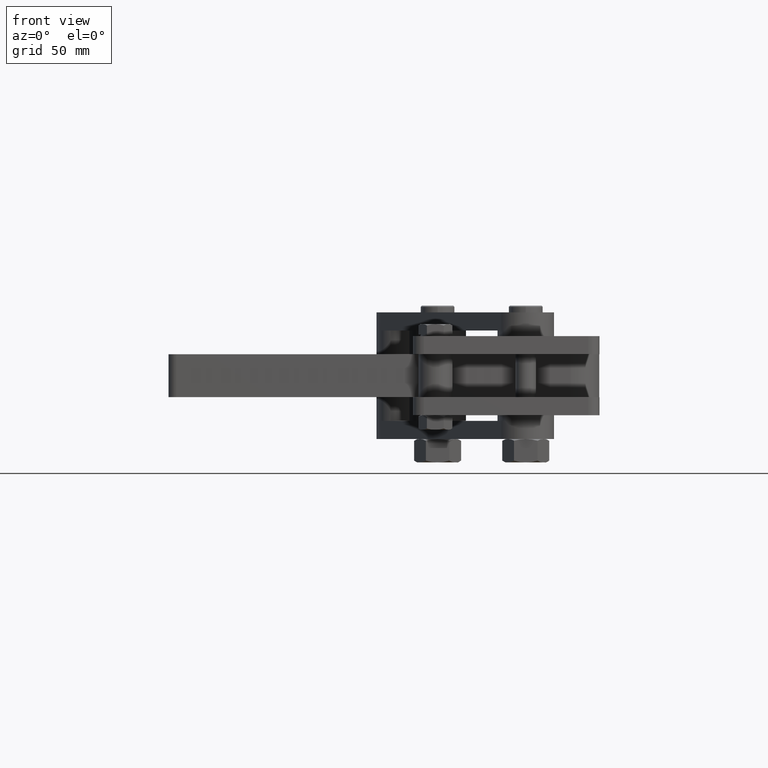
[diagram: clean part render]
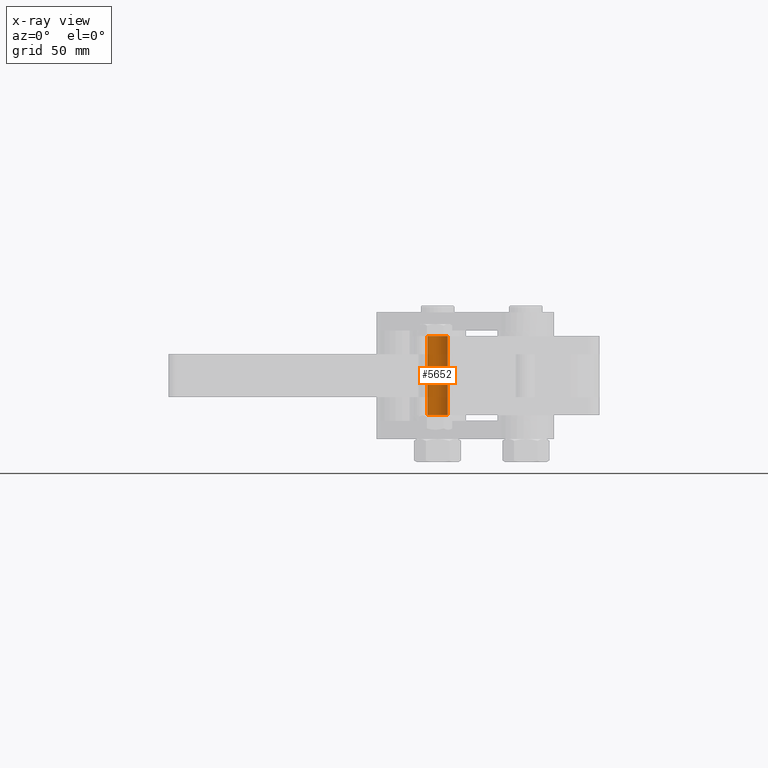
[diagram: x-ray — body ghosted, one internal face saturated and labeled with its STEP entity id]
A machine part, front view, then the same camera in x-ray: the body is ghosted and one INTERNAL B-rep face — a face not visible from any outside direction — is saturated and labeled: STEP entity #5652.
In plain terms, the highlighted cylindrical surface (edge-blend (fillet) strip) has radius 4.5 mm, axis along (0, 0, 1).
Its self-contained STEP definition (entity closure, byte-faithful):
#15 = CARTESIAN_POINT ( 'NONE',  ( 1.499681511515049200, 108.4497976147729900, -43.88570993473476300 ) ) ;
#338 = LINE ( 'NONE', #15, #6299 ) ;
#535 = AXIS2_PLACEMENT_3D ( 'NONE', #5182, #1751, #5768 ) ;
#540 = EDGE_CURVE ( 'NONE', #6668, #5205, #5481, .T. ) ;
#784 = ORIENTED_EDGE ( 'NONE', *, *, #2091, .F. ) ;
#823 = ORIENTED_EDGE ( 'NONE', *, *, #540, .F. ) ;
#1264 = CARTESIAN_POINT ( 'NONE',  ( 5.999681511515049700, 108.4497976147729900, -27.00000000000000000 ) ) ;
#1751 = DIRECTION ( 'NONE',  ( 0.0000000000000000000, 0.0000000000000000000, -1.000000000000000000 ) ) ;
#1796 = VERTEX_POINT ( 'NONE', #3390 ) ;
#1842 = DIRECTION ( 'NONE',  ( -1.000000000000000000, 0.0000000000000000000, 0.0000000000000000000 ) ) ;
#2010 = ORIENTED_EDGE ( 'NONE', *, *, #5986, .T. ) ;
#2078 = DIRECTION ( 'NONE',  ( 0.0000000000000000000, 0.0000000000000000000, 1.000000000000000000 ) ) ;
#2091 = EDGE_CURVE ( 'NONE', #1796, #6668, #7447, .T. ) ;
#2864 = FACE_OUTER_BOUND ( 'NONE', #3240, .T. ) ;
#2988 = CARTESIAN_POINT ( 'NONE',  ( 10.49968151151505000, 108.4497976147729900, -27.00000000000000000 ) ) ;
#3226 = CARTESIAN_POINT ( 'NONE',  ( 5.999681511515049700, 108.4497976147729900, -43.88570993473476300 ) ) ;
#3240 = EDGE_LOOP ( 'NONE', ( #784, #5847, #2010, #823 ) ) ;
#3315 = AXIS2_PLACEMENT_3D ( 'NONE', #1264, #5276, #1842 ) ;
#3390 = CARTESIAN_POINT ( 'NONE',  ( 1.499681511515049200, 108.4497976147729900, -27.00000000000000000 ) ) ;
#3670 = AXIS2_PLACEMENT_3D ( 'NONE', #3226, #2078, #7252 ) ;
#4043 = CYLINDRICAL_SURFACE ( 'NONE', #3670, 4.500000000000000000 ) ;
#4552 = DIRECTION ( 'NONE',  ( 0.0000000000000000000, 0.0000000000000000000, 1.000000000000000000 ) ) ;
#4579 = CARTESIAN_POINT ( 'NONE',  ( 10.49968151151505000, 108.4497976147729900, 8.000000000000000000 ) ) ;
#4863 = EDGE_CURVE ( 'NONE', #1796, #7135, #338, .T. ) ;
#5182 = CARTESIAN_POINT ( 'NONE',  ( 5.999681511515049700, 108.4497976147729900, 8.000000000000000000 ) ) ;
#5205 = VERTEX_POINT ( 'NONE', #4579 ) ;
#5220 = DIRECTION ( 'NONE',  ( 0.0000000000000000000, 0.0000000000000000000, 1.000000000000000000 ) ) ;
#5276 = DIRECTION ( 'NONE',  ( 0.0000000000000000000, 0.0000000000000000000, -1.000000000000000000 ) ) ;
#5455 = CIRCLE ( 'NONE', #535, 4.500000000000000900 ) ;
#5481 = LINE ( 'NONE', #5692, #6826 ) ;
#5652 = ADVANCED_FACE ( 'NONE', ( #2864 ), #4043, .T. ) ;
#5692 = CARTESIAN_POINT ( 'NONE',  ( 10.49968151151505000, 108.4497976147729900, -43.88570993473476300 ) ) ;
#5768 = DIRECTION ( 'NONE',  ( -1.000000000000000000, 0.0000000000000000000, 0.0000000000000000000 ) ) ;
#5847 = ORIENTED_EDGE ( 'NONE', *, *, #4863, .T. ) ;
#5986 = EDGE_CURVE ( 'NONE', #7135, #5205, #5455, .T. ) ;
#6299 = VECTOR ( 'NONE', #5220, 1000.000000000000000 ) ;
#6661 = CARTESIAN_POINT ( 'NONE',  ( 1.499681511515049200, 108.4497976147729900, 8.000000000000000000 ) ) ;
#6668 = VERTEX_POINT ( 'NONE', #2988 ) ;
#6826 = VECTOR ( 'NONE', #4552, 1000.000000000000000 ) ;
#7135 = VERTEX_POINT ( 'NONE', #6661 ) ;
#7252 = DIRECTION ( 'NONE',  ( 1.000000000000000000, 0.0000000000000000000, 0.0000000000000000000 ) ) ;
#7447 = CIRCLE ( 'NONE', #3315, 4.500000000000000900 ) ;